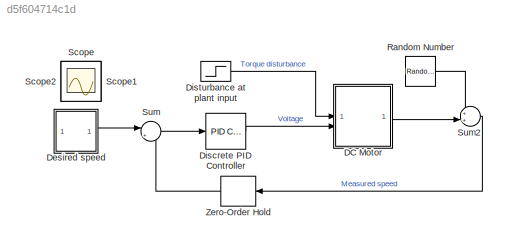
MODEL slx_d5f604714c1d
KIND model
CONFIG AbsTol = auto
CONFIG EnableMultiTasking = on
CONFIG FixedStep = auto
CONFIG MaxStep = auto
CONFIG MinStep = auto
CONFIG PreLoadFcn = % Motor Parameters\n\nJ=0.01;     %kg*m^2\nb=0.1;      %N*m/(rad/s)\nK=0.01;     %V/(rad/s)\nR=1;        %Ohm\nL=0.5;      %H
CONFIG RelTol = 1e-3
CONFIG SampleTimeConstraint = Unconstrained
CONFIG SolverName = ode45
CONFIG StartTime = 0.0
CONFIG StopTime = 10.0
BLOCK [Step]  Disturbance at plant input
  After = 0.2
  SampleTime = 0
  Time = 5
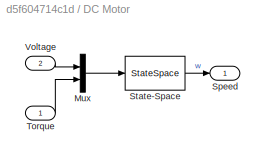
BLOCK [SubSystem] DC Motor
BLOCK [Mux] DC Motor/Mux
  DisplayOption = bar
  Inputs = 2
BLOCK [Outport] DC Motor/Speed
BLOCK [StateSpace] DC Motor/State-Space
  A = [-b/J K/J; -K/L -R/L]
  B = [0 -1/J; 1/L 0]
  C = [1 0]
  D = [0 0]
  InitialCondition = 0
BLOCK [Inport] DC Motor/Torque
BLOCK [Inport] DC Motor/Voltage
  Port = 2
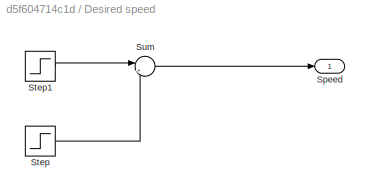
BLOCK [SubSystem] Desired speed
BLOCK [Outport] Desired speed/Speed
BLOCK [Step] Desired speed/Step
  After = -4
  SampleTime = 0.02
  Time = 7
BLOCK [Step] Desired speed/Step1
  After = 2
  SampleTime = 0.02
BLOCK [Sum] Desired speed/Sum
  Inputs = |++
BLOCK [Reference] Discrete PID Controller  REF=slpidlib/PID Controller
  LibrarySourceBlock = simulink/Discrete/Discrete PID Controller
  SourceBlock = slpidlib/PID Controller
  SourceType = PID 1dof
BLOCK [RandomNumber] Random Number
  SampleTime = 0.02
  Variance = 0.05
BLOCK [Scope] Scope
  Floating = off
  IOType = viewer
  NumInputPorts = 1
  ScopeSpecificationString = Simulink.scopes.TimeScopeBlockCfg('CurrentConfiguration', extmgr.ConfigurationSet(extmgr.Configuration('Core','General UI',true),extmgr.Configuration('Core','Source UI',true),extmgr.Configuration('Sources','WiredSimulink',true,'DataLoggingSaveFormat','Array','DataLoggingMaxPoints','7500','DataLoggingLimitDataPoints',true,'DataLoggingDecimation','1','DataLoggingDecimateData',true),extmgr.Configurat...<+1701ch>
BLOCK [Scope] Scope1
  Floating = off
  IOType = viewer
  NumInputPorts = 1
  ScopeSpecificationString = Simulink.scopes.TimeScopeBlockCfg('CurrentConfiguration', extmgr.ConfigurationSet(extmgr.Configuration('Core','General UI',true),extmgr.Configuration('Core','Source UI',true),extmgr.Configuration('Sources','WiredSimulink',true,'DataLoggingVariableName','ScopeData2','DataLoggingSaveFormat','Array','DataLoggingMaxPoints','7500','DataLoggingDecimation','1','DataLoggingDecimateData',true),extmgr.Confi...<+4111ch>
BLOCK [Scope] Scope2
  Floating = off
  IOType = viewer
  NumInputPorts = 1
  ScopeSpecificationString = Simulink.scopes.TimeScopeBlockCfg('CurrentConfiguration', extmgr.ConfigurationSet(extmgr.Configuration('Core','General UI',true),extmgr.Configuration('Core','Source UI',true),extmgr.Configuration('Sources','WiredSimulink',true,'DataLoggingVariableName','ScopeData1','DataLoggingSaveFormat','Array','DataLoggingMaxPoints','7500','DataLoggingLimitDataPoints',true,'DataLoggingDecimation','1','DataLoggi...<+1756ch>
BLOCK [Sum] Sum
  Inputs = |+-
BLOCK [Sum] Sum2
  Inputs = ++|
BLOCK [ZeroOrderHold] Zero-Order Hold
  NameLocation = top
  SampleTime = 0.02
LINE  Disturbance at plant input:1 -> DC Motor:1
LINE DC Motor/Mux:1 -> DC Motor/State-Space:1
LINE DC Motor/State-Space:1 -> DC Motor/Speed:1
LINE DC Motor/Torque:1 -> DC Motor/Mux:2
LINE DC Motor/Voltage:1 -> DC Motor/Mux:1
LINE DC Motor:1 -> Sum2:2
LINE Desired speed/Step1:1 -> Desired speed/Sum:1
LINE Desired speed/Step:1 -> Desired speed/Sum:2
LINE Desired speed/Sum:1 -> Desired speed/Speed:1
LINE Desired speed:1 -> Sum:1
LINE Discrete PID Controller:1 -> DC Motor:2
LINE Random Number:1 -> Sum2:1
LINE Sum2:1 -> Zero-Order Hold:1
LINE Sum:1 -> Discrete PID Controller:1
LINE Zero-Order Hold:1 -> Sum:2
